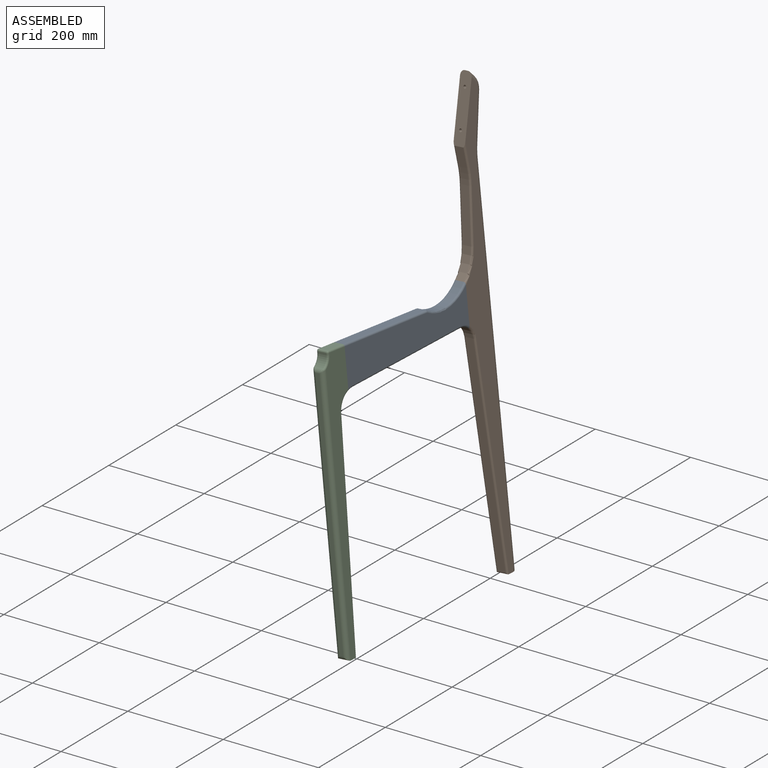
[diagram: assembled view]
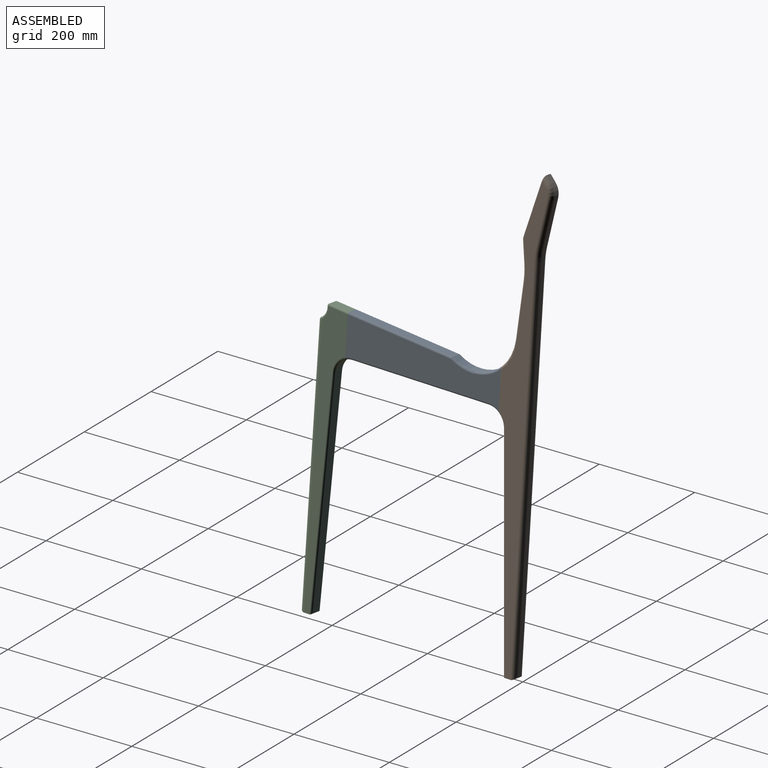
[diagram: assembled view, second angle]
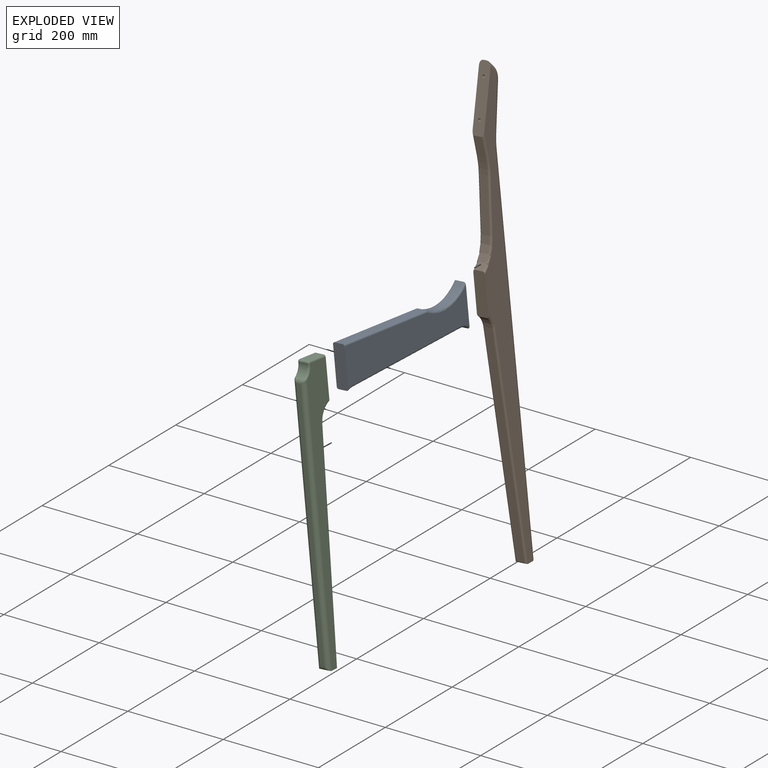
[diagram: exploded view]
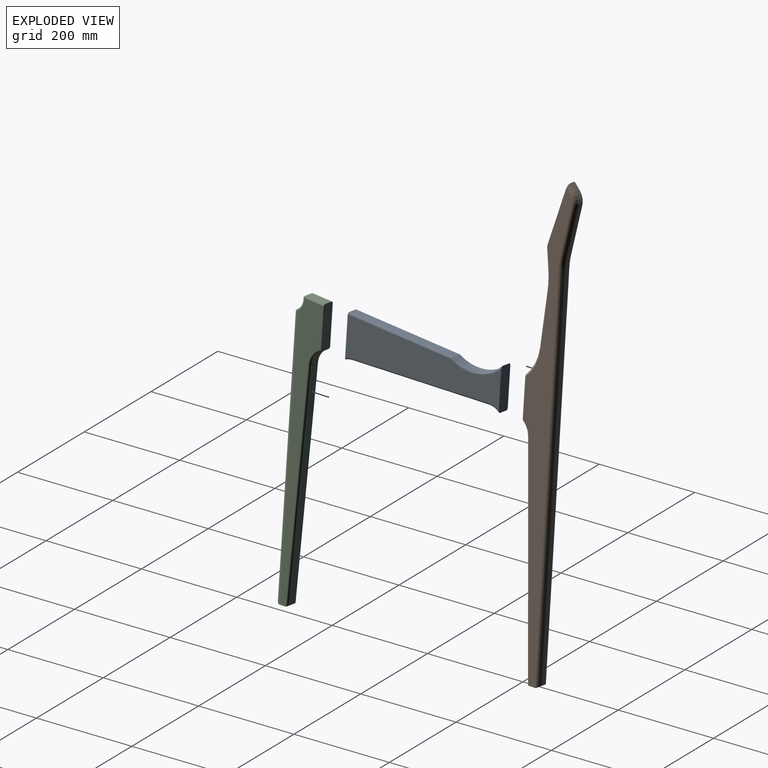
[diagram: exploded view, second angle]
ASSEMBLY  parts=3 mates=2
PART A: 19 faces, bbox 52.7x349.9x93 mm
  f0: plane 88.37x33.17mm, normal (-0.06,-1,-0.01), area 2193.5mm2, adj f1,f6,f7,f8,f11,f14,f15,f17
  f1: cylinder r=35.79mm len=18.16mm, axis (0.99,-0.06,0.1), area 250.5mm2, adj f0,f2,f11,f14
  f2: plane 298.79x34.23mm, normal (0.1,0,-1), area 5303.1mm2, adj f1,f3,f10,f13
  f3: cylinder r=36.07mm len=25.1mm, axis (0.99,-0.06,0.1), area 470.3mm2, adj f2,f4,f9,f12
  f4: plane 87.83x32.79mm, normal (0.06,1,0.01), area 2179.6mm2, adj f3,f5,f7,f8,f9,f12,f16,f18
  f5: cylinder r=88.9mm len=109.14mm, axis (0.99,-0.06,0.1), area 2088.4mm2, adj f4,f6,f16,f18
  f6: plane 228.45x32.27mm, normal (-0.09,0.09,0.99), area 4066mm2, adj f0,f5,f15,f17
  f7: plane 335.61x82.38mm, normal (-0.99,0.06,-0.1), area 20638.3mm2, adj f0,f4,f12,f13,f14,f17,f18
  f8: plane 335.61x82.38mm, normal (0.99,-0.06,0.1), area 20638.3mm2, adj f0,f4,f9,f10,f11,f15,f16
  f9: torus R=39.88mm, axis (-0.99,0.06,-0.1), area 157.1mm2, adj f3,f4,f8,f10
  f10: cylinder r=3.81mm len=298.01mm, axis (0.06,1,0.01), area 1785mm2, adj f2,f8,f9,f11
  f11: torus R=39.6mm, axis (-0.99,0.06,-0.1), area 84.1mm2, adj f0,f1,f8,f10
  f12: torus R=39.88mm, axis (-0.99,0.06,-0.1), area 157.1mm2, adj f3,f4,f7,f13
  f13: cylinder r=3.81mm len=298.01mm, axis (-0.06,-1,-0.01), area 1785mm2, adj f2,f7,f12,f14
  f14: torus R=39.6mm, axis (-0.99,0.06,-0.1), area 84.1mm2, adj f0,f1,f7,f13
  f15: cylinder r=3.81mm len=228mm, axis (-0.06,-0.99,0.08), area 1365.7mm2, adj f0,f6,f8,f16
  f16: torus R=92.71mm, axis (-0.99,0.06,-0.1), area 703.9mm2, adj f4,f5,f8,f15
  f17: cylinder r=3.81mm len=227.64mm, axis (0.06,0.99,-0.08), area 1365.7mm2, adj f0,f6,f7,f18
  f18: torus R=92.71mm, axis (-0.99,0.06,-0.1), area 703.9mm2, adj f4,f5,f7,f17
PART B: 51 faces, bbox 115.7x91.8x923.3 mm
  f0: plane 445.41x63.19mm, normal (-0.05,-1,-0.08), area 7949.8mm2, adj f43,f45,f47,f48
  f1: plane 25.95x14.32mm, normal (0.1,0,-1), area 328.2mm2, adj f14,f15,f29,f43,f45,f47
  f2: plane 754.96x82.12mm, normal (0.06,1,0.01), area 5775.1mm2, adj f3,f28,f29,f30
  f3: cylinder r=127mm len=24.31mm, axis (0.99,-0.06,0.1), area 181.3mm2, adj f2,f4,f27,f31
  f4: plane 95.79x18.06mm, normal (0.07,0.98,-0.18), area 739.3mm2, adj f3,f5,f26,f32
  f5: cylinder r=31.75mm len=28.1mm, axis (0.99,-0.06,0.1), area 226.9mm2, adj f4,f6,f25,f33
  f6: plane 13.11x12.15mm, normal (-0.03,0.73,0.69), area 130.6mm2, adj f5,f7,f24,f34
  f7: plane 128.64x37.96mm, normal (-0.08,-0.96,0.27), area 3262.3mm2, adj f6,f8,f14,f15,f20,f22,f24,f34
  f8: plane 41.91x21.94mm, normal (-0.04,-0.99,-0.14), area 724.9mm2, adj f7,f9,f38,f42
  f9: cylinder r=152.4mm len=34.44mm, axis (0.99,-0.06,0.1), area 585.7mm2, adj f8,f10,f37,f41
  f10: plane 110.95x27.94mm, normal (-0.06,-1,0.07), area 1956.6mm2, adj f9,f11,f36,f40
  f11: cylinder r=88.9mm len=57.68mm, axis (0.99,-0.06,0.1), area 1122.9mm2, adj f10,f12,f35,f39
  f12: plane 87.84x32.79mm, normal (-0.06,-1,-0.01), area 2179.6mm2, adj f11,f13,f14,f15,f35,f39,f44,f50
  f13: cylinder r=36.07mm len=24.54mm, axis (0.99,-0.06,0.1), area 469mm2, adj f12,f44,f48,f50
  f14: plane 911.66x89.73mm, normal (-0.99,0.06,-0.1), area 27315.4mm2, adj f1,f7,f12,f16,f18,f24,f25,f26
  f15: plane 911.66x89.73mm, normal (0.99,-0.06,0.1), area 27378.7mm2, adj f1,f7,f12,f29,f30,f31,f32,f33
  f16: cylinder r=3.17mm len=13.34mm, axis (0.99,-0.06,0.1), area 253.4mm2, adj f14,f17
  f17: plane 6.34x6.32mm, normal (-0.99,0.06,-0.1), area 31.7mm2, adj f16
  f18: cylinder r=3.17mm len=13.34mm, axis (0.99,-0.06,0.1), area 253.4mm2, adj f14,f19
  f19: plane 6.34x6.32mm, normal (-0.99,0.06,-0.1), area 31.7mm2, adj f18
  f20: cylinder r=3.17mm len=26.16mm, axis (-0.08,-0.96,0.27), area 506.7mm2, adj f7,f21
  f21: plane 6.33x6.11mm, normal (-0.08,-0.96,0.27), area 31.7mm2, adj f20
  f22: cylinder r=3.17mm len=26.16mm, axis (-0.08,-0.96,0.27), area 506.7mm2, adj f7,f23
  f23: plane 6.33x6.11mm, normal (-0.08,-0.96,0.27), area 31.7mm2, adj f22
  f24: cylinder r=8.89mm len=19.33mm, axis (0.11,0.68,-0.72), area 212.8mm2, adj f6,f7,f14,f25
  f25: torus R=22.86mm, axis (-0.99,0.06,-0.1), area 373.5mm2, adj f5,f14,f24,f26
  f26: cylinder r=8.89mm len=95.96mm, axis (0.09,-0.18,-0.98), area 1354.9mm2, adj f4,f14,f25,f27
  f27: torus R=135.89mm, axis (-0.99,0.06,-0.1), area 340.8mm2, adj f3,f14,f26,f28
  f28: cylinder r=8.89mm len=764.01mm, axis (0.1,0,-1), area 10662.5mm2, adj f2,f14,f27,f29
  f29: cylinder r=8.89mm len=25.75mm, axis (0.99,-0.06,0.1), area 265.5mm2, adj f1,f2,f14,f15,f28,f30
  f30: cylinder r=8.89mm len=763.84mm, axis (-0.1,0,1), area 10662.5mm2, adj f2,f15,f29,f31
  f31: torus R=135.89mm, axis (-0.99,0.06,-0.1), area 340.8mm2, adj f3,f15,f30,f32
  f32: cylinder r=8.89mm len=97.47mm, axis (-0.09,0.18,0.98), area 1354.9mm2, adj f4,f15,f31,f33
  f33: torus R=22.86mm, axis (-0.99,0.06,-0.1), area 373.5mm2, adj f5,f15,f32,f34
  f34: cylinder r=8.89mm len=18.69mm, axis (-0.11,-0.68,0.72), area 212.8mm2, adj f6,f7,f15,f33
  f35: torus R=92.71mm, axis (-0.99,0.06,-0.1), area 392mm2, adj f11,f12,f15,f36
  f36: cylinder r=3.81mm len=109.39mm, axis (0.09,-0.08,-0.99), area 658.6mm2, adj f10,f15,f35,f37
  f37: torus R=156.21mm, axis (-0.99,0.06,-0.1), area 198.9mm2, adj f9,f15,f36,f38
  f38: cylinder r=3.81mm len=49.49mm, axis (0.1,0.14,-0.99), area 262.6mm2, adj f7,f8,f15,f37
  f39: torus R=92.71mm, axis (-0.99,0.06,-0.1), area 392mm2, adj f11,f12,f14,f40
  f40: cylinder r=3.81mm len=109.86mm, axis (-0.09,0.08,0.99), area 658.6mm2, adj f10,f14,f39,f41
  f41: torus R=156.21mm, axis (-0.99,0.06,-0.1), area 198.9mm2, adj f9,f14,f40,f42
  f42: cylinder r=3.81mm len=48.86mm, axis (-0.1,-0.14,0.99), area 262.6mm2, adj f7,f8,f14,f41
  f43: cylinder r=3.81mm len=448.12mm, axis (0.1,0.07,-0.99), area 2690.4mm2, adj f0,f1,f15,f45,f46
  f44: torus R=39.88mm, axis (-0.99,0.06,-0.1), area 171.2mm2, adj f12,f13,f15,f46
  f45: cylinder r=3.81mm len=25.78mm, axis (0.99,-0.06,0.1), area 128.6mm2, adj f0,f1,f43,f47
  f46: torus R=7.62mm, axis (-0.99,0.06,-0.1), area 1.1mm2, adj f15,f43,f44,f48
  f47: cylinder r=3.81mm len=447.64mm, axis (-0.1,-0.07,0.99), area 2690.4mm2, adj f0,f1,f14,f45,f49
  f48: cylinder r=3.81mm len=17.68mm, axis (0.99,-0.06,0.1), area 2.4mm2, adj f0,f13,f46,f49
  f49: torus R=7.62mm, axis (-0.99,0.06,-0.1), area 1.1mm2, adj f14,f47,f48,f50
  f50: torus R=39.88mm, axis (-0.99,0.06,-0.1), area 171.2mm2, adj f12,f13,f14,f49
PART C: 33 faces, bbox 80.9x67.2x569.3 mm
  f0: cylinder r=35.79mm len=33.39mm, axis (0.99,-0.06,0.1), area 724.7mm2, adj f1,f6,f28,f32
  f1: plane 88.37x33.17mm, normal (0.06,1,0.01), area 2193.5mm2, adj f0,f2,f7,f8,f20,f23,f28,f32
  f2: plane 42.86x20.35mm, normal (-0.09,0.09,0.99), area 748.5mm2, adj f1,f20,f22,f23
  f3: cylinder r=25.4mm len=26.16mm, axis (0.99,-0.06,0.1), area 518.1mm2, adj f16,f18,f19,f22,f25,f26
  f4: plane 522.68x58.96mm, normal (-0.06,-1,0), area 3996.4mm2, adj f13,f14,f15,f16
  f5: plane 25.95x14.22mm, normal (0.1,0,-1), area 325.7mm2, adj f7,f8,f13,f29,f30,f31
  f6: plane 443.53x60.27mm, normal (0.06,1,-0.03), area 7897.2mm2, adj f0,f29,f30,f31
  f7: plane 563.26x55.68mm, normal (-0.99,0.06,-0.1), area 14737.7mm2, adj f1,f5,f9,f11,f13,f14,f23,f25
  f8: plane 563.26x55.68mm, normal (0.99,-0.06,0.1), area 14801mm2, adj f1,f5,f13,f15,f19,f20,f31,f32
  f9: cylinder r=3.17mm len=13.34mm, axis (0.99,-0.06,0.1), area 253.4mm2, adj f7,f10
  f10: plane 6.34x6.32mm, normal (-0.99,0.06,-0.1), area 31.7mm2, adj f9
  f11: cylinder r=3.17mm len=13.34mm, axis (0.99,-0.06,0.1), area 253.4mm2, adj f7,f12
  f12: plane 6.34x6.32mm, normal (-0.99,0.06,-0.1), area 31.7mm2, adj f11
  f13: cylinder r=8.89mm len=26.61mm, axis (-0.99,0.06,-0.1), area 265mm2, adj f4,f5,f7,f8,f14,f15
  f14: cylinder r=8.89mm len=537.6mm, axis (-0.1,0,1), area 7449.6mm2, adj f4,f7,f13,f26,f27
  f15: cylinder r=8.89mm len=537.66mm, axis (0.1,0,-1), area 7449.6mm2, adj f4,f8,f13,f17,f18
  f16: cylinder r=8.89mm len=16.87mm, axis (0.99,-0.06,0.1), area 117.6mm2, adj f3,f4,f17,f27
  f17: bspline ~8.4x7.76mm, area 27.7mm2, adj f15,f16,f18
  f18: bspline ~6.81x5.55mm, area 21.1mm2, adj f3,f15,f17,f19
  f19: torus R=29.21mm, axis (-0.99,0.06,-0.1), area 168.3mm2, adj f3,f8,f18,f21
  f20: cylinder r=3.81mm len=42.75mm, axis (-0.06,-0.99,0.08), area 252.9mm2, adj f1,f2,f8,f21
  f21: sphere r=3.81mm, area 25mm2, adj f19,f20,f22
  f22: cylinder r=3.81mm len=17.92mm, axis (0.99,-0.06,0.1), area 118.5mm2, adj f2,f3,f21,f24
  f23: cylinder r=3.81mm len=42.38mm, axis (0.06,0.99,-0.08), area 252.9mm2, adj f1,f2,f7,f24
  f24: sphere r=3.81mm, area 25.4mm2, adj f22,f23,f25
  f25: torus R=29.21mm, axis (-0.99,0.06,-0.1), area 168.3mm2, adj f3,f7,f24,f26
  f26: bspline ~8.04x5.76mm, area 21.1mm2, adj f3,f14,f25,f27
  f27: bspline ~8.1x7.51mm, area 27.7mm2, adj f14,f16,f26
  f28: torus R=39.6mm, axis (-0.99,0.06,-0.1), area 256.8mm2, adj f0,f1,f7,f29
  f29: cylinder r=3.81mm len=445.85mm, axis (0.1,-0.04,-0.99), area 2672.7mm2, adj f5,f6,f7,f28,f30
  f30: cylinder r=3.81mm len=25.44mm, axis (0.99,-0.06,0.1), area 131.7mm2, adj f5,f6,f29,f31
  f31: cylinder r=3.81mm len=446.08mm, axis (-0.1,0.04,0.99), area 2672.7mm2, adj f5,f6,f8,f30,f32
  f32: torus R=39.6mm, axis (-0.99,0.06,-0.1), area 256.8mm2, adj f0,f1,f8,f31
PLACE A at identity
PLACE B at identity
PLACE C at identity
MATE fastened A.f0 <-> C.f1  axis (-0.06,-1,-0.01) through (358.88,-389.25,124.16)mm
MATE fastened A.f4 <-> B.f12  axis (0.06,1,0.01) through (378.2,-53.64,119.29)mm
